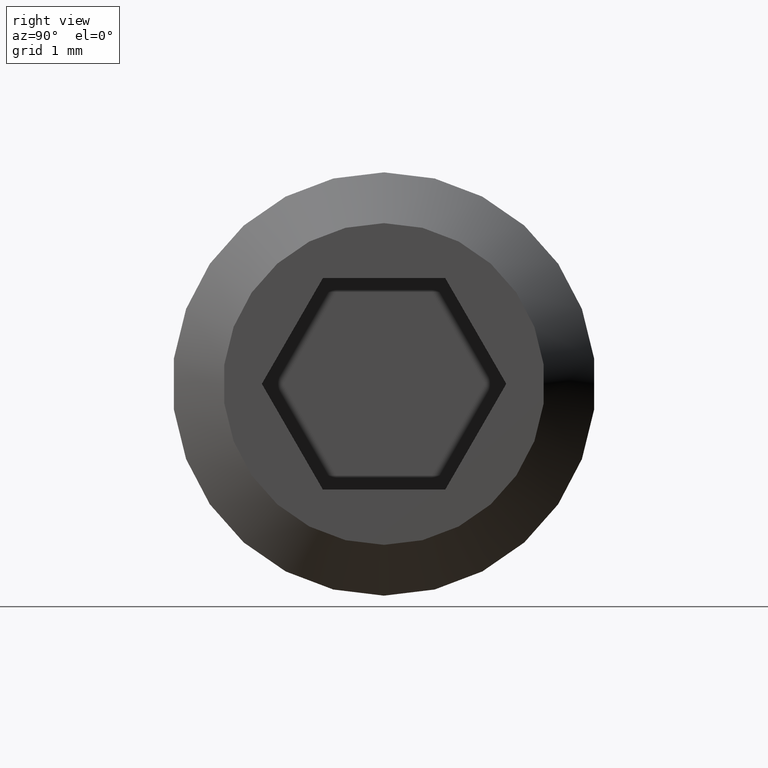
[diagram: clean part render]
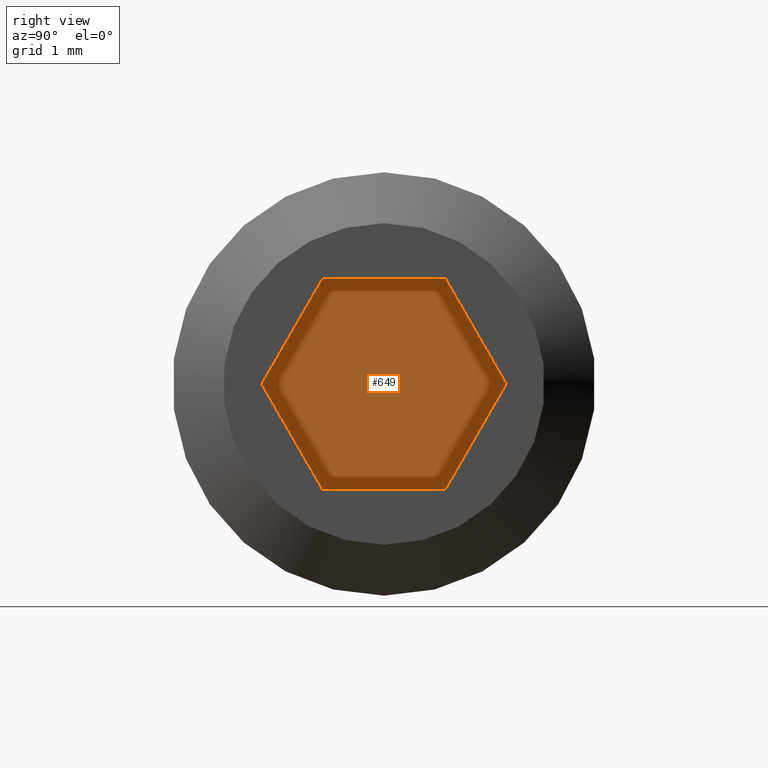
[diagram: same view with one face highlighted and labeled with its STEP entity id]
A machine part, right view. The second image highlights one B-rep face of the part: STEP entity #649.
In plain terms, the highlighted planar face has unit normal (1, -0, 0).
Its self-contained STEP definition (entity closure, byte-faithful):
#41 = ORIENTED_EDGE ( 'NONE', *, *, #2275, .T. ) ;
#258 = DIRECTION ( 'NONE',  ( 0.0000000000000000000, -1.000000000000000000, -3.004629197474318100E-016 ) ) ;
#649 = ADVANCED_FACE ( 'NONE', ( #11279 ), #9858, .T. ) ;
#688 = EDGE_LOOP ( 'NONE', ( #7053, #7670, #1425, #8033, #41, #9592 ) ) ;
#954 = DIRECTION ( 'NONE',  ( 0.0000000000000000000, -0.5000000000000001100, -0.8660254037844386000 ) ) ;
#960 = VERTEX_POINT ( 'NONE', #11233 ) ;
#1002 = VECTOR ( 'NONE', #3016, 1000.000000000000000 ) ;
#1223 = VECTOR ( 'NONE', #11365, 1000.000000000000000 ) ;
#1425 = ORIENTED_EDGE ( 'NONE', *, *, #5211, .T. ) ;
#2077 = LINE ( 'NONE', #5820, #1002 ) ;
#2275 = EDGE_CURVE ( 'NONE', #8568, #960, #10915, .T. ) ;
#2571 = EDGE_CURVE ( 'NONE', #3864, #8568, #6866, .T. ) ;
#3016 = DIRECTION ( 'NONE',  ( 0.0000000000000000000, 0.4999999999999995600, -0.8660254037844389300 ) ) ;
#3027 = EDGE_CURVE ( 'NONE', #4972, #7177, #2077, .T. ) ;
#3062 = CARTESIAN_POINT ( 'NONE',  ( 2.000000000000000000, -0.7216878364870322700, 1.249999999999999600 ) ) ;
#3172 = LINE ( 'NONE', #8878, #10435 ) ;
#3466 = CARTESIAN_POINT ( 'NONE',  ( 2.000000000000000000, -1.443375672974064300, 2.535389781714670200E-016 ) ) ;
#3529 = DIRECTION ( 'NONE',  ( 0.0000000000000000000, 1.000000000000000000, 0.0000000000000000000 ) ) ;
#3864 = VERTEX_POINT ( 'NONE', #7796 ) ;
#4534 = CARTESIAN_POINT ( 'NONE',  ( 2.000000000000000000, -2.165063509461096800, -1.250000000000000000 ) ) ;
#4550 = CARTESIAN_POINT ( 'NONE',  ( 2.000000000000000000, 0.7216878364870323900, 1.250000000000000000 ) ) ;
#4608 = DIRECTION ( 'NONE',  ( 0.0000000000000000000, 0.0000000000000000000, -1.000000000000000000 ) ) ;
#4646 = VERTEX_POINT ( 'NONE', #3062 ) ;
#4972 = VERTEX_POINT ( 'NONE', #3466 ) ;
#4985 = EDGE_CURVE ( 'NONE', #4646, #4972, #5999, .T. ) ;
#5071 = EDGE_CURVE ( 'NONE', #960, #4646, #6387, .T. ) ;
#5116 = CARTESIAN_POINT ( 'NONE',  ( 2.000000000000000000, 0.7216878364870323900, -1.250000000000000000 ) ) ;
#5211 = EDGE_CURVE ( 'NONE', #7177, #3864, #3172, .T. ) ;
#5312 = CARTESIAN_POINT ( 'NONE',  ( 2.000000000000000000, -0.7216878364870328300, -1.250000000000000000 ) ) ;
#5820 = CARTESIAN_POINT ( 'NONE',  ( 2.000000000000000000, -1.443375672974064300, 2.535389781714670200E-016 ) ) ;
#5843 = CARTESIAN_POINT ( 'NONE',  ( 2.000000000000000000, 1.443375672974064500, -4.184323954442376900E-016 ) ) ;
#5999 = LINE ( 'NONE', #6988, #9736 ) ;
#6387 = LINE ( 'NONE', #4550, #8626 ) ;
#6866 = LINE ( 'NONE', #5116, #1223 ) ;
#6988 = CARTESIAN_POINT ( 'NONE',  ( 2.000000000000000000, -0.7216878364870322700, 1.249999999999999600 ) ) ;
#6993 = AXIS2_PLACEMENT_3D ( 'NONE', #4534, #8166, #4608 ) ;
#7053 = ORIENTED_EDGE ( 'NONE', *, *, #4985, .T. ) ;
#7177 = VERTEX_POINT ( 'NONE', #5312 ) ;
#7670 = ORIENTED_EDGE ( 'NONE', *, *, #3027, .T. ) ;
#7796 = CARTESIAN_POINT ( 'NONE',  ( 2.000000000000000000, 0.7216878364870323900, -1.250000000000000000 ) ) ;
#8033 = ORIENTED_EDGE ( 'NONE', *, *, #2571, .T. ) ;
#8145 = CARTESIAN_POINT ( 'NONE',  ( 2.000000000000000000, 1.443375672974064500, -4.184323954442376900E-016 ) ) ;
#8166 = DIRECTION ( 'NONE',  ( 1.000000000000000000, -0.0000000000000000000, 0.0000000000000000000 ) ) ;
#8568 = VERTEX_POINT ( 'NONE', #8145 ) ;
#8626 = VECTOR ( 'NONE', #258, 1000.000000000000000 ) ;
#8878 = CARTESIAN_POINT ( 'NONE',  ( 2.000000000000000000, -0.7216878364870328300, -1.250000000000000000 ) ) ;
#9481 = DIRECTION ( 'NONE',  ( 0.0000000000000000000, -0.4999999999999997800, 0.8660254037844387100 ) ) ;
#9592 = ORIENTED_EDGE ( 'NONE', *, *, #5071, .T. ) ;
#9736 = VECTOR ( 'NONE', #954, 1000.000000000000000 ) ;
#9858 = PLANE ( 'NONE',  #6993 ) ;
#10435 = VECTOR ( 'NONE', #3529, 1000.000000000000000 ) ;
#10645 = VECTOR ( 'NONE', #9481, 1000.000000000000100 ) ;
#10915 = LINE ( 'NONE', #5843, #10645 ) ;
#11233 = CARTESIAN_POINT ( 'NONE',  ( 2.000000000000000000, 0.7216878364870323900, 1.250000000000000000 ) ) ;
#11279 = FACE_OUTER_BOUND ( 'NONE', #688, .T. ) ;
#11365 = DIRECTION ( 'NONE',  ( 0.0000000000000000000, 0.5000000000000001100, 0.8660254037844386000 ) ) ;